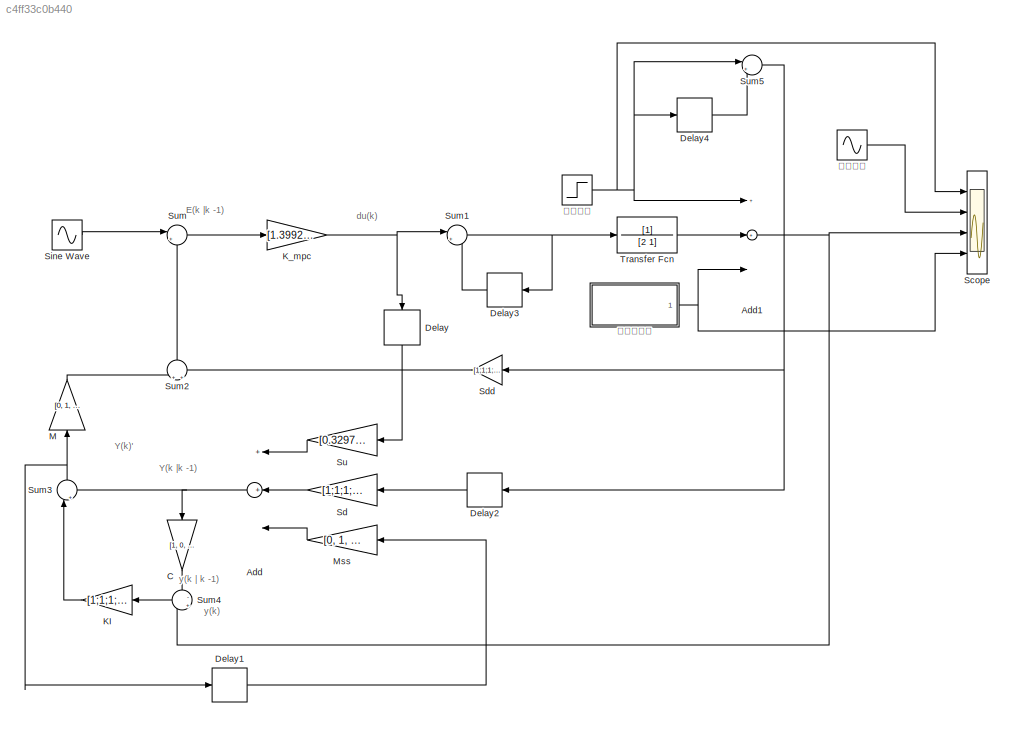
MODEL slx_c4ff33c0b440
KIND model
CONFIG AbsTol = auto
CONFIG FixedStep = auto
CONFIG MaxStep = auto
CONFIG MinStep = auto
CONFIG RelTol = 1e-3
CONFIG SampleTimeConstraint = Unconstrained
CONFIG Solver = VariableStepAuto
CONFIG SolverMode = Auto
CONFIG SolverName = VariableStepAuto
CONFIG StartTime = 0.0
CONFIG StopTime = 20
BLOCK [Sum] Add
  InputSameDT = off
  Inputs = 3
  OutDataTypeStr = Inherit: Inherit via internal rule
  Ports = [3, 1]
  SaturateOnIntegerOverflow = off
BLOCK [Sum] Add1
  InputSameDT = off
  Inputs = 3
  OutDataTypeStr = Inherit: Inherit via internal rule
  Ports = [3, 1]
  SaturateOnIntegerOverflow = off
BLOCK [Gain] C
  Gain = [1, 0, 0, 0, 0, 0, 0, 0]
  Multiplication = Matrix(K*u)
  OutDataTypeStr = Inherit: Inherit via internal rule
  ParamDataTypeStr = Inherit: Inherit via internal rule
  SaturateOnIntegerOverflow = off
BLOCK [Delay] Delay
  DelayLength = 1
  InitialCondition = 0
  InputPortMap = u0
  Ports = [1, 1]
  SampleTime = 0.2
BLOCK [Delay] Delay1
  DelayLength = 1
  InitialCondition = 0
  InputPortMap = u0
  Ports = [1, 1]
  SampleTime = 0.2
BLOCK [Delay] Delay2
  DelayLength = 1
  InitialCondition = 0
  InputPortMap = u0
  Ports = [1, 1]
  SampleTime = 0.2
BLOCK [Delay] Delay3
  DelayLength = 1
  InitialCondition = 0
  InputPortMap = u0
  Ports = [1, 1]
  SampleTime = 0.2
BLOCK [Delay] Delay4
  DelayLength = 1
  InitialCondition = 0
  InputPortMap = u0
  Ports = [1, 1]
  SampleTime = 0.2
BLOCK [Gain] KI
  Gain = [1;1;1;1;1;1;1;1]
  Multiplication = Matrix(K*u)
  OutDataTypeStr = Inherit: Inherit via internal rule
  ParamDataTypeStr = Inherit: Inherit via internal rule
  SaturateOnIntegerOverflow = off
BLOCK [Gain] K_mpc
  Gain = [1.3992, 0.5927, 0.2413, 0.0061, -0.1515]
  Multiplication = Matrix(K*u)
  OutDataTypeStr = Inherit: Inherit via internal rule
  ParamDataTypeStr = Inherit: Inherit via internal rule
  SaturateOnIntegerOverflow = off
BLOCK [Gain] M
  Gain = [0, 1, 0, 0, 0, 0, 0, 0; 0, 0, 1, 0, 0, 0, 0, 0; 0, 0, 0, 1, 0, 0, 0, 0; 0, 0, 0, 0, 1, 0, 0, 0; 0, 0, 0, 0, 0, 1, 0, 0]
  Multiplication = Matrix(K*u)
  OutDataTypeStr = Inherit: Inherit via internal rule
  ParamDataTypeStr = Inherit: Inherit via internal rule
  SaturateOnIntegerOverflow = off
BLOCK [Gain] Mss
  Gain = [0, 1, 0, 0, 0, 0, 0, 0; 0, 0, 1, 0, 0, 0, 0, 0; 0, 0, 0, 1, 0, 0, 0, 0; 0, 0, 0, 0, 1, 0, 0, 0; 0, 0, 0, 0, 0, 1, 0, 0; 0, 0, 0, 0, 0, 0, 1, 0; 0, 0, 0, 0, 0, 0, 0, 1; 0, 0, 0, 0, 0, 0, 0, 1]
  Multiplication = Matrix(K*u)
  OutDataTypeStr = Inherit: Inherit via internal rule
  ParamDataTypeStr = Inherit: Inherit via internal rule
  SaturateOnIntegerOverflow = off
BLOCK [Scope] Scope
  NumInputPorts = 4
  Ports = [4]
  ScopeSpecificationString = Simulink.scopes.TimeScopeBlockCfg('CurrentConfiguration', extmgr.ConfigurationSet(extmgr.Configuration('Core','General UI',true),extmgr.Configuration('Core','Source UI',true),extmgr.Configuration('Sources','WiredSimulink',true),extmgr.Configuration('Visuals','Time Domain',true,'SerializedDisplays',{struct('MinYLimReal','-2.72495','MaxYLimReal','2.80854','YLabelReal','','MinYLimMag','0.00000','MaxY...<+1379ch>
BLOCK [Gain] Sd 
  Gain = [1;1;1;1;1;1;1;1]
  Multiplication = Matrix(K*u)
  OutDataTypeStr = Inherit: Inherit via internal rule
  ParamDataTypeStr = Inherit: Inherit via internal rule
  SaturateOnIntegerOverflow = off
BLOCK [Gain] Sdd
  Gain = [1;1;1;1;1]
  Multiplication = Matrix(K*u)
  OutDataTypeStr = Inherit: Inherit via internal rule
  ParamDataTypeStr = Inherit: Inherit via internal rule
  SaturateOnIntegerOverflow = off
BLOCK [Sin] Sine Wave
  Amplitude = 2
  Ports = [0, 1]
  SampleTime = 0.2
BLOCK [Gain] Su
  Gain = [0.3297;\n0.5507;\n0.6988;\n0.7981;\n0.8647;\n0.9093; 0.9392; 0.9592]
  Multiplication = Matrix(K*u)
  OutDataTypeStr = Inherit: Inherit via internal rule
  ParamDataTypeStr = Inherit: Inherit via internal rule
  SaturateOnIntegerOverflow = off
BLOCK [Sum] Sum
  IconShape = round
  InputSameDT = off
  Inputs = |+-
  OutDataTypeStr = Inherit: Inherit via internal rule
  Ports = [2, 1]
  SaturateOnIntegerOverflow = off
BLOCK [Sum] Sum1
  IconShape = round
  InputSameDT = off
  Inputs = |++
  OutDataTypeStr = Inherit: Inherit via internal rule
  Ports = [2, 1]
  SaturateOnIntegerOverflow = off
BLOCK [Sum] Sum2
  IconShape = round
  InputSameDT = off
  Inputs = +|+
  OutDataTypeStr = Inherit: Inherit via internal rule
  Ports = [2, 1]
  SaturateOnIntegerOverflow = off
BLOCK [Sum] Sum3
  IconShape = round
  InputSameDT = off
  Inputs = |++
  OutDataTypeStr = Inherit: Inherit via internal rule
  Ports = [2, 1]
  SaturateOnIntegerOverflow = off
BLOCK [Sum] Sum4
  IconShape = round
  InputSameDT = off
  Inputs = -|+
  OutDataTypeStr = Inherit: Inherit via internal rule
  Ports = [2, 1]
  SaturateOnIntegerOverflow = off
BLOCK [Sum] Sum5
  IconShape = round
  InputSameDT = off
  Inputs = |+-
  OutDataTypeStr = Inherit: Inherit via internal rule
  Ports = [2, 1]
  SaturateOnIntegerOverflow = off
BLOCK [TransferFcn] Transfer Fcn
  Denominator = [2 1]
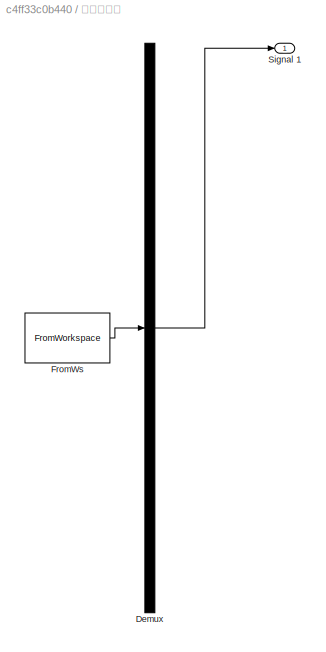
BLOCK [SubSystem] 不可测扰动
  ClipboardFcn = sigbuilder_block('clipboard');
  CloseFcn = sigbuilder_block('close');
  ContinueFcn = sigbuilder_block('continue');
  CopyFcn = sigbuilder_block('copy');
  DeleteFcn = sigbuilder_block('delete');
  LoadFcn = sigbuilder_block('load');
  MaskHideContents = on
  ModelCloseFcn = sigbuilder_block('modelClose');
  NameChangeFcn = sigbuilder_block('namechange');
  OpenFcn = sigbuilder_block('open',[437.6 199.2 550.4 400 ]);
  PauseFcn = sigbuilder_block('pause');
  Ports = [0, 1]
  PreSaveFcn = sigbuilder_block('preSave');
  RequestExecContextInheritance = off
  StartFcn = sigbuilder_block('start');
  StopFcn = sigbuilder_block('stop');
  Tag = STV Subsys
  Variant = off
BLOCK [Demux] 不可测扰动/Demux
  Outputs = 1
  Ports = [1, 1]
  Tag = STV Demux
BLOCK [FromWorkspace] 不可测扰动/FromWs
  SampleTime = 0
  Tag = STV FromWs
  VariableName = tuvar
  ZeroCross = on
BLOCK [Outport] 不可测扰动/Signal 1
  IconDisplay = Port number
  Tag = STV Outport
BLOCK [Sin] 参考输入
  Amplitude = 2
  Ports = [0, 1]
  SampleTime = 0
BLOCK [Step] 可测扰动
  SampleTime = 0.2
ANNOTATION (root): E(k |k -1)
ANNOTATION (root): Y(k |k -1)
ANNOTATION (root): Y(k)'
ANNOTATION (root): du(k)
ANNOTATION (root): y(k | k -1)
ANNOTATION (root): y(k)
NET Add1:1 -> Scope:3, Sum4:2
NET Add:1 -> C:1, Sum3:2
LINE C:1 -> Sum4:1
LINE Delay1:1 -> Mss:1
LINE Delay2:1 -> Sd :1
LINE Delay3:1 -> Sum1:2
LINE Delay4:1 -> Sum5:2
LINE Delay:1 -> Su:1
LINE KI:1 -> Sum3:1
NET K_mpc:1 -> Delay:1, Sum1:1
LINE M:1 -> Sum2:1
LINE Mss:1 -> Add:3
LINE Sd :1 -> Add:2
LINE Sdd:1 -> Sum2:2
LINE Sine Wave:1 -> Sum:1
LINE Su:1 -> Add:1
NET Sum1:1 -> Delay3:1, Transfer Fcn:1
LINE Sum2:1 -> Sum:2
NET Sum3:1 -> Delay1:1, M:1
LINE Sum4:1 -> KI:1
NET Sum5:1 -> Delay2:1, Sdd:1
LINE Sum:1 -> K_mpc:1
LINE Transfer Fcn:1 -> Add1:2
NET 不可测扰动:1 -> Add1:3, Scope:4
LINE 参考输入:1 -> Scope:2
NET 可测扰动:1 -> Add1:1, Delay4:1, Scope:1, Sum5:1
note: NET lines group one-source signal fan-out (src -> all destinations, sorted); 1:1 wires keep LINE
